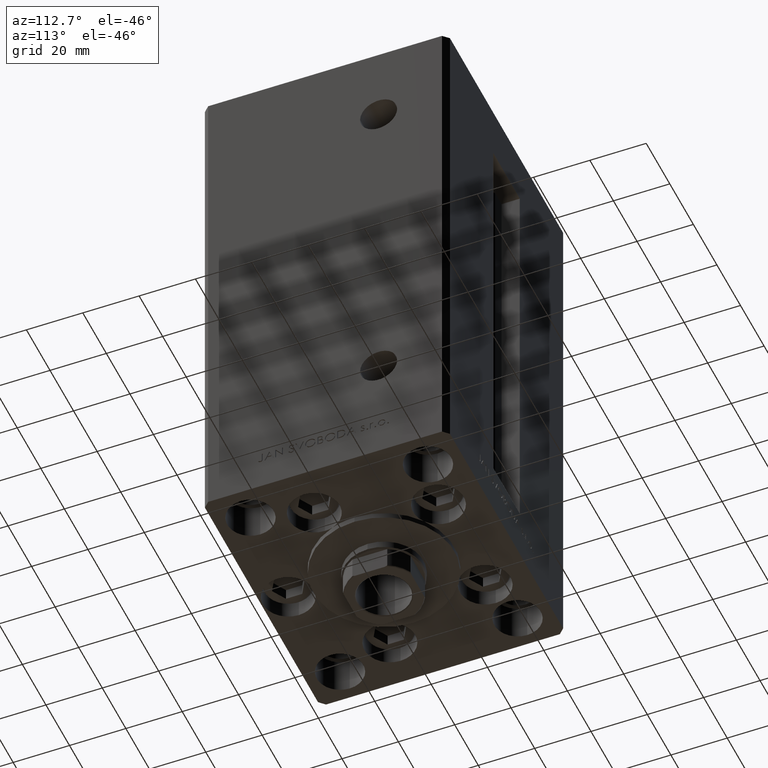
[diagram: clean part render]
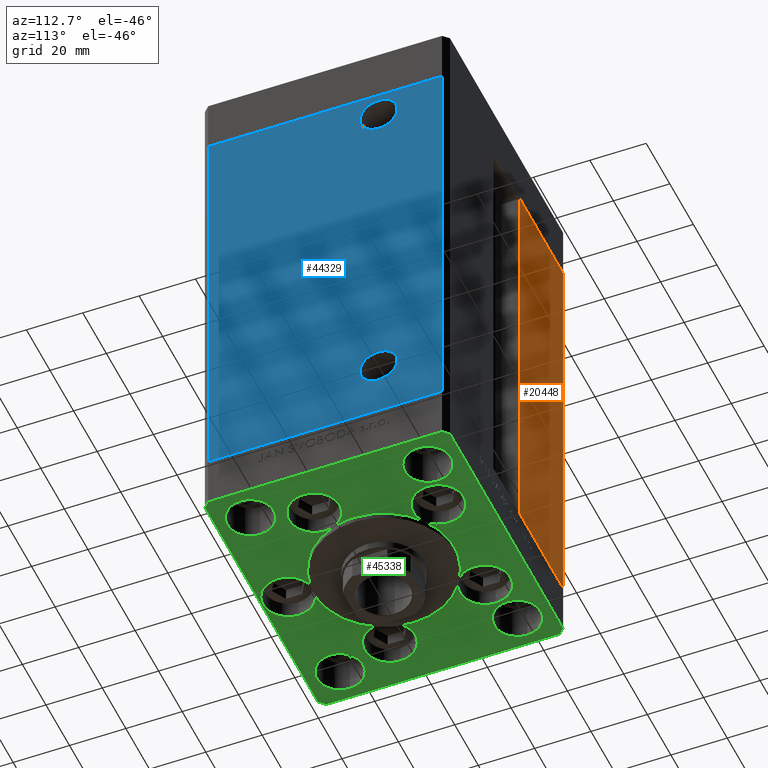
[diagram: same view with three faces highlighted in distinct colors, each labeled with its STEP entity id]
A machine part, auxiliary view with three faces highlighted in distinct colors.
Their STEP definitions:

[orange] entity #20448 — the highlighted planar face has unit normal (0, -1, 0).
#778 = EDGE_CURVE ( 'NONE', #40918, #32778, #41975, .T. ) ;
#2474 = ORIENTED_EDGE ( 'NONE', *, *, #42205, .T. ) ;
#2859 = VERTEX_POINT ( 'NONE', #32279 ) ;
#3688 = LINE ( 'NONE', #42316, #11966 ) ;
#5497 = DIRECTION ( 'NONE',  ( 0.000000000000000000, -0.000000000000000000, -1.000000000000000000 ) ) ;
#6407 = DIRECTION ( 'NONE',  ( 1.000000000000000000, 0.000000000000000000, 0.000000000000000000 ) ) ;
#7473 = ORIENTED_EDGE ( 'NONE', *, *, #19398, .T. ) ;
#7599 = CARTESIAN_POINT ( 'NONE',  ( -11.24999999999999822, 43.50000000000000000, 0.000000000000000000 ) ) ;
#8714 = VECTOR ( 'NONE', #6407, 1000.000000000000000 ) ;
#8956 = CARTESIAN_POINT ( 'NONE',  ( -11.24999999999999822, 43.50000000000000000, 0.000000000000000000 ) ) ;
#9244 = EDGE_LOOP ( 'NONE', ( #2474, #48143, #7473, #40346 ) ) ;
#11966 = VECTOR ( 'NONE', #26292, 1000.000000000000000 ) ;
#12194 = DIRECTION ( 'NONE',  ( -0.000000000000000000, -0.000000000000000000, -1.000000000000000000 ) ) ;
#15160 = VERTEX_POINT ( 'NONE', #42997 ) ;
#19398 = EDGE_CURVE ( 'NONE', #40918, #15160, #3688, .T. ) ;
#20448 = ADVANCED_FACE ( 'NONE', ( #24836 ), #39629, .F. ) ;
#21585 = VECTOR ( 'NONE', #12194, 1000.000000000000000 ) ;
#23300 = CARTESIAN_POINT ( 'NONE',  ( -11.24999999999999822, 43.50000000000000000, 148.5000000000000000 ) ) ;
#23742 = LINE ( 'NONE', #46302, #21585 ) ;
#24836 = FACE_OUTER_BOUND ( 'NONE', #9244, .T. ) ;
#26212 = LINE ( 'NONE', #37260, #8714 ) ;
#26292 = DIRECTION ( 'NONE',  ( -1.000000000000000000, 0.000000000000000000, 0.000000000000000000 ) ) ;
#29229 = VECTOR ( 'NONE', #32445, 1000.000000000000000 ) ;
#32279 = CARTESIAN_POINT ( 'NONE',  ( -48.00000000000000711, 43.50000000000000000, 148.5000000000000000 ) ) ;
#32445 = DIRECTION ( 'NONE',  ( -0.000000000000000000, -0.000000000000000000, 1.000000000000000000 ) ) ;
#32778 = VERTEX_POINT ( 'NONE', #23300 ) ;
#37260 = CARTESIAN_POINT ( 'NONE',  ( -11.24999999999999822, 43.50000000000000000, 148.5000000000000000 ) ) ;
#39378 = CARTESIAN_POINT ( 'NONE',  ( -11.24999999999999822, 43.50000000000000000, 148.5000000000000000 ) ) ;
#39629 = PLANE ( 'NONE',  #48100 ) ;
#40346 = ORIENTED_EDGE ( 'NONE', *, *, #42016, .F. ) ;
#40918 = VERTEX_POINT ( 'NONE', #8956 ) ;
#41975 = LINE ( 'NONE', #7599, #29229 ) ;
#42016 = EDGE_CURVE ( 'NONE', #2859, #15160, #23742, .T. ) ;
#42205 = EDGE_CURVE ( 'NONE', #2859, #32778, #26212, .T. ) ;
#42316 = CARTESIAN_POINT ( 'NONE',  ( -11.24999999999999822, 43.50000000000000000, 0.000000000000000000 ) ) ;
#42997 = CARTESIAN_POINT ( 'NONE',  ( -48.00000000000000711, 43.50000000000000000, 0.000000000000000000 ) ) ;
#43389 = DIRECTION ( 'NONE',  ( 0.000000000000000000, -1.000000000000000000, 0.000000000000000000 ) ) ;
#46302 = CARTESIAN_POINT ( 'NONE',  ( -48.00000000000000711, 43.50000000000000000, 148.5000000000000000 ) ) ;
#48100 = AXIS2_PLACEMENT_3D ( 'NONE', #39378, #43389, #5497 ) ;
#48143 = ORIENTED_EDGE ( 'NONE', *, *, #778, .F. ) ;

[blue] entity #44329 — the highlighted planar face has unit normal (1, -0, 0).
#491 = DIRECTION ( 'NONE',  ( 0.000000000000000000, 1.000000000000000000, 0.000000000000000000 ) ) ;
#553 = ORIENTED_EDGE ( 'NONE', *, *, #48969, .F. ) ;
#926 = CARTESIAN_POINT ( 'NONE',  ( 50.00000000000000711, 12.41999999999998394, 139.4999999999999716 ) ) ;
#2236 = EDGE_CURVE ( 'NONE', #2321, #2691, #26038, .T. ) ;
#2321 = VERTEX_POINT ( 'NONE', #41878 ) ;
#2691 = VERTEX_POINT ( 'NONE', #926 ) ;
#2795 = LINE ( 'NONE', #14575, #40147 ) ;
#3240 = CARTESIAN_POINT ( 'NONE',  ( 50.00000000000001421, 41.49999999999999289, 148.5000000000000000 ) ) ;
#3983 = CARTESIAN_POINT ( 'NONE',  ( 50.00000000000000711, 19.00000000000000000, 139.4999999999999716 ) ) ;
#4111 = EDGE_LOOP ( 'NONE', ( #47925, #27017 ) ) ;
#4259 = VERTEX_POINT ( 'NONE', #17307 ) ;
#5005 = CARTESIAN_POINT ( 'NONE',  ( 50.00000000000000711, 19.00000000000000000, 139.4999999999999716 ) ) ;
#7231 = EDGE_LOOP ( 'NONE', ( #38630, #23966 ) ) ;
#7366 = CARTESIAN_POINT ( 'NONE',  ( 50.00000000000000711, 19.00000000000000000, 20.99999999999998934 ) ) ;
#8208 = VERTEX_POINT ( 'NONE', #10020 ) ;
#8225 = DIRECTION ( 'NONE',  ( 1.000000000000000000, -3.344045254895050480E-16, 0.000000000000000000 ) ) ;
#8263 = AXIS2_PLACEMENT_3D ( 'NONE', #3983, #14805, #19298 ) ;
#10020 = CARTESIAN_POINT ( 'NONE',  ( 50.00000000000001421, 41.49999999999999289, 0.000000000000000000 ) ) ;
#10036 = FACE_BOUND ( 'NONE', #4111, .T. ) ;
#10279 = FACE_OUTER_BOUND ( 'NONE', #34486, .T. ) ;
#10290 = DIRECTION ( 'NONE',  ( -3.344045254895050973E-16, -1.000000000000000000, 0.000000000000000000 ) ) ;
#10830 = CARTESIAN_POINT ( 'NONE',  ( 49.99999999999998579, -41.49999999999999289, 0.000000000000000000 ) ) ;
#10885 = DIRECTION ( 'NONE',  ( 0.000000000000000000, 1.000000000000000000, 0.000000000000000000 ) ) ;
#12429 = EDGE_CURVE ( 'NONE', #2691, #2321, #23890, .T. ) ;
#12623 = CARTESIAN_POINT ( 'NONE',  ( 50.00000000000001421, 41.49999999999999289, 148.5000000000000000 ) ) ;
#14071 = CARTESIAN_POINT ( 'NONE',  ( 50.00000000000001421, 41.49999999999999289, 0.000000000000000000 ) ) ;
#14522 = VERTEX_POINT ( 'NONE', #10830 ) ;
#14575 = CARTESIAN_POINT ( 'NONE',  ( 50.00000000000001421, 41.49999999999999289, 148.5000000000000000 ) ) ;
#14805 = DIRECTION ( 'NONE',  ( 1.000000000000000000, -2.275047181608927644E-16, 0.000000000000000000 ) ) ;
#16291 = DIRECTION ( 'NONE',  ( 1.000000000000000000, -2.275047181608927644E-16, 0.000000000000000000 ) ) ;
#16678 = DIRECTION ( 'NONE',  ( 1.000000000000000000, -2.275047181608927644E-16, 0.000000000000000000 ) ) ;
#17307 = CARTESIAN_POINT ( 'NONE',  ( 50.00000000000000711, 25.58000000000000540, 20.99999999999998934 ) ) ;
#19298 = DIRECTION ( 'NONE',  ( 0.000000000000000000, 1.000000000000000000, 0.000000000000000000 ) ) ;
#22688 = DIRECTION ( 'NONE',  ( 1.000000000000000000, -2.275047181608927644E-16, 0.000000000000000000 ) ) ;
#23104 = EDGE_CURVE ( 'NONE', #35840, #8208, #2795, .T. ) ;
#23890 = CIRCLE ( 'NONE', #36703, 6.580000000000016058 ) ;
#23966 = ORIENTED_EDGE ( 'NONE', *, *, #12429, .F. ) ;
#25023 = LINE ( 'NONE', #48090, #32253 ) ;
#25945 = EDGE_CURVE ( 'NONE', #39631, #14522, #25023, .T. ) ;
#26038 = CIRCLE ( 'NONE', #8263, 6.580000000000016058 ) ;
#26496 = AXIS2_PLACEMENT_3D ( 'NONE', #32240, #16678, #48053 ) ;
#26540 = CIRCLE ( 'NONE', #26496, 6.580000000000006288 ) ;
#27017 = ORIENTED_EDGE ( 'NONE', *, *, #46471, .F. ) ;
#27984 = LINE ( 'NONE', #3240, #28211 ) ;
#28047 = AXIS2_PLACEMENT_3D ( 'NONE', #42357, #8225, #34332 ) ;
#28193 = VECTOR ( 'NONE', #10290, 1000.000000000000000 ) ;
#28211 = VECTOR ( 'NONE', #35250, 1000.000000000000000 ) ;
#28477 = CARTESIAN_POINT ( 'NONE',  ( 49.99999999999998579, -41.49999999999999289, 148.5000000000000000 ) ) ;
#29029 = DIRECTION ( 'NONE',  ( -0.000000000000000000, -0.000000000000000000, -1.000000000000000000 ) ) ;
#29929 = EDGE_CURVE ( 'NONE', #35840, #39631, #27984, .T. ) ;
#32240 = CARTESIAN_POINT ( 'NONE',  ( 50.00000000000000711, 19.00000000000000000, 20.99999999999998934 ) ) ;
#32253 = VECTOR ( 'NONE', #29029, 1000.000000000000000 ) ;
#33769 = ORIENTED_EDGE ( 'NONE', *, *, #25945, .T. ) ;
#34332 = DIRECTION ( 'NONE',  ( 3.344045254895050480E-16, 1.000000000000000000, 0.000000000000000000 ) ) ;
#34486 = EDGE_LOOP ( 'NONE', ( #553, #36667, #49543, #33769 ) ) ;
#35250 = DIRECTION ( 'NONE',  ( -3.344045254895050973E-16, -1.000000000000000000, 0.000000000000000000 ) ) ;
#35840 = VERTEX_POINT ( 'NONE', #12623 ) ;
#36667 = ORIENTED_EDGE ( 'NONE', *, *, #23104, .F. ) ;
#36703 = AXIS2_PLACEMENT_3D ( 'NONE', #5005, #16291, #491 ) ;
#36886 = FACE_BOUND ( 'NONE', #7231, .T. ) ;
#38630 = ORIENTED_EDGE ( 'NONE', *, *, #2236, .F. ) ;
#39631 = VERTEX_POINT ( 'NONE', #28477 ) ;
#40147 = VECTOR ( 'NONE', #45423, 1000.000000000000000 ) ;
#40583 = CARTESIAN_POINT ( 'NONE',  ( 50.00000000000000711, 12.41999999999999282, 20.99999999999998934 ) ) ;
#41393 = LINE ( 'NONE', #14071, #28193 ) ;
#41878 = CARTESIAN_POINT ( 'NONE',  ( 50.00000000000000711, 25.58000000000001606, 139.4999999999999716 ) ) ;
#42103 = PLANE ( 'NONE',  #28047 ) ;
#42357 = CARTESIAN_POINT ( 'NONE',  ( 50.00000000000001421, 41.49999999999999289, 148.5000000000000000 ) ) ;
#42492 = AXIS2_PLACEMENT_3D ( 'NONE', #7366, #22688, #10885 ) ;
#42610 = CIRCLE ( 'NONE', #42492, 6.580000000000006288 ) ;
#44329 = ADVANCED_FACE ( 'NONE', ( #10036, #36886, #10279 ), #42103, .T. ) ;
#45423 = DIRECTION ( 'NONE',  ( -0.000000000000000000, -0.000000000000000000, -1.000000000000000000 ) ) ;
#46095 = VERTEX_POINT ( 'NONE', #40583 ) ;
#46471 = EDGE_CURVE ( 'NONE', #46095, #4259, #26540, .T. ) ;
#47925 = ORIENTED_EDGE ( 'NONE', *, *, #48197, .F. ) ;
#48053 = DIRECTION ( 'NONE',  ( 0.000000000000000000, 1.000000000000000000, 0.000000000000000000 ) ) ;
#48090 = CARTESIAN_POINT ( 'NONE',  ( 49.99999999999998579, -41.49999999999999289, 148.5000000000000000 ) ) ;
#48197 = EDGE_CURVE ( 'NONE', #4259, #46095, #42610, .T. ) ;
#48969 = EDGE_CURVE ( 'NONE', #8208, #14522, #41393, .T. ) ;
#49543 = ORIENTED_EDGE ( 'NONE', *, *, #29929, .T. ) ;

[green] entity #45338 — the highlighted planar face has unit normal (0, 0, -1).
#5 = VERTEX_POINT ( 'NONE', #16125 ) ;
#183 = VERTEX_POINT ( 'NONE', #36451 ) ;
#185 = DIRECTION ( 'NONE',  ( 1.000000000000000000, 0.000000000000000000, 0.000000000000000000 ) ) ;
#264 = ORIENTED_EDGE ( 'NONE', *, *, #23842, .F. ) ;
#408 = CARTESIAN_POINT ( 'NONE',  ( -25.00000000000000000, -6.938893903907228378E-15, 0.000000000000000000 ) ) ;
#559 = ORIENTED_EDGE ( 'NONE', *, *, #34869, .F. ) ;
#645 = LINE ( 'NONE', #16444, #15870 ) ;
#975 = EDGE_CURVE ( 'NONE', #2932, #47329, #9133, .T. ) ;
#1073 = DIRECTION ( 'NONE',  ( 1.000000000000000000, 0.000000000000000000, 0.000000000000000000 ) ) ;
#1428 = AXIS2_PLACEMENT_3D ( 'NONE', #45708, #3576, #23132 ) ;
#1573 = LINE ( 'NONE', #31673, #8062 ) ;
#1645 = CARTESIAN_POINT ( 'NONE',  ( 46.25000000000000000, 31.50000000000000000, 0.000000000000000000 ) ) ;
#1846 = CARTESIAN_POINT ( 'NONE',  ( 32.05550741379015989, -11.33333333333332860, 0.000000000000000000 ) ) ;
#2028 = CARTESIAN_POINT ( 'NONE',  ( -41.05550741379015989, -11.33333333333332682, 0.000000000000000000 ) ) ;
#2307 = AXIS2_PLACEMENT_3D ( 'NONE', #34236, #3877, #4121 ) ;
#2309 = DIRECTION ( 'NONE',  ( 0.000000000000000000, 0.000000000000000000, 1.000000000000000000 ) ) ;
#2501 = DIRECTION ( 'NONE',  ( 1.000000000000000000, 0.000000000000000000, 0.000000000000000000 ) ) ;
#2507 = VERTEX_POINT ( 'NONE', #12010 ) ;
#2719 = CARTESIAN_POINT ( 'NONE',  ( -48.00000000000000000, 43.49999999999997158, 0.000000000000000000 ) ) ;
#2755 = VERTEX_POINT ( 'NONE', #19242 ) ;
#2821 = DIRECTION ( 'NONE',  ( 1.000000000000000000, 0.000000000000000000, 0.000000000000000000 ) ) ;
#2848 = CARTESIAN_POINT ( 'NONE',  ( -50.00000000000000711, 41.49999999999999289, 0.000000000000000000 ) ) ;
#2932 = VERTEX_POINT ( 'NONE', #14869 ) ;
#3022 = AXIS2_PLACEMENT_3D ( 'NONE', #13154, #9360, #26776 ) ;
#3212 = DIRECTION ( 'NONE',  ( 0.000000000000000000, 0.000000000000000000, 1.000000000000000000 ) ) ;
#3576 = DIRECTION ( 'NONE',  ( 0.000000000000000000, 0.000000000000000000, 1.000000000000000000 ) ) ;
#3626 = CARTESIAN_POINT ( 'NONE',  ( 0.000000000000000000, -6.938893903907228378E-15, 0.000000000000000000 ) ) ;
#3861 = LINE ( 'NONE', #10664, #22274 ) ;
#3877 = DIRECTION ( 'NONE',  ( 0.000000000000000000, 0.000000000000000000, 1.000000000000000000 ) ) ;
#3887 = CARTESIAN_POINT ( 'NONE',  ( 19.82068048781374969, 27.62499999999998934, 0.000000000000000000 ) ) ;
#3938 = DIRECTION ( 'NONE',  ( 0.000000000000000000, 0.000000000000000000, 1.000000000000000000 ) ) ;
#3986 = ORIENTED_EDGE ( 'NONE', *, *, #25043, .F. ) ;
#4039 = DIRECTION ( 'NONE',  ( -0.000000000000000000, 0.000000000000000000, 1.000000000000000000 ) ) ;
#4121 = DIRECTION ( 'NONE',  ( 1.000000000000000000, 0.000000000000000000, 0.000000000000000000 ) ) ;
#4704 = ORIENTED_EDGE ( 'NONE', *, *, #975, .F. ) ;
#4750 = AXIS2_PLACEMENT_3D ( 'NONE', #39173, #32011, #36282 ) ;
#4974 = DIRECTION ( 'NONE',  ( 0.000000000000000000, 0.000000000000000000, 1.000000000000000000 ) ) ;
#5050 = DIRECTION ( 'NONE',  ( 1.000000000000000000, 0.000000000000000000, 0.000000000000000000 ) ) ;
#5162 = CIRCLE ( 'NONE', #38791, 8.250000000000000000 ) ;
#5467 = LINE ( 'NONE', #31315, #48663 ) ;
#5644 = CARTESIAN_POINT ( 'NONE',  ( 23.05550741379015633, -11.33333333333332682, 0.000000000000000000 ) ) ;
#5723 = CARTESIAN_POINT ( 'NONE',  ( -10.82068048781375147, 27.62499999999998934, 0.000000000000000000 ) ) ;
#6217 = CARTESIAN_POINT ( 'NONE',  ( 0.000000000000000000, -34.00000000000000000, 0.000000000000000000 ) ) ;
#6287 = DIRECTION ( 'NONE',  ( 1.000000000000000000, 0.000000000000000000, 0.000000000000000000 ) ) ;
#6348 = CIRCLE ( 'NONE', #7114, 9.000000000000000000 ) ;
#6460 = DIRECTION ( 'NONE',  ( 1.000000000000000000, 0.000000000000000000, 0.000000000000000000 ) ) ;
#6611 = DIRECTION ( 'NONE',  ( 8.360113137237620037E-17, -1.000000000000000000, 0.000000000000000000 ) ) ;
#6682 = CIRCLE ( 'NONE', #45118, 8.249999999999992895 ) ;
#6740 = CARTESIAN_POINT ( 'NONE',  ( -46.25000000000000000, 31.50000000000000000, 0.000000000000000000 ) ) ;
#7084 = CIRCLE ( 'NONE', #35122, 8.249999999999992895 ) ;
#7114 = AXIS2_PLACEMENT_3D ( 'NONE', #6217, #22506, #6460 ) ;
#7149 = CARTESIAN_POINT ( 'NONE',  ( 48.00000000000000711, -43.49999999999992184, 0.000000000000000000 ) ) ;
#7214 = CARTESIAN_POINT ( 'NONE',  ( -46.25000000000000711, -31.50000000000000711, 0.000000000000000000 ) ) ;
#7337 = AXIS2_PLACEMENT_3D ( 'NONE', #1846, #28687, #26631 ) ;
#7402 = VERTEX_POINT ( 'NONE', #7149 ) ;
#7799 = CIRCLE ( 'NONE', #40727, 25.00000000000000000 ) ;
#7919 = DIRECTION ( 'NONE',  ( 1.000000000000000000, 0.000000000000000000, 0.000000000000000000 ) ) ;
#8062 = VECTOR ( 'NONE', #35684, 1000.000000000000000 ) ;
#8132 = CIRCLE ( 'NONE', #10559, 8.999999999999998224 ) ;
#8754 = ORIENTED_EDGE ( 'NONE', *, *, #11235, .T. ) ;
#9008 = ORIENTED_EDGE ( 'NONE', *, *, #38371, .F. ) ;
#9133 = CIRCLE ( 'NONE', #45226, 8.250000000000000000 ) ;
#9191 = ORIENTED_EDGE ( 'NONE', *, *, #18815, .F. ) ;
#9209 = DIRECTION ( 'NONE',  ( 0.000000000000000000, 0.000000000000000000, 1.000000000000000000 ) ) ;
#9252 = ORIENTED_EDGE ( 'NONE', *, *, #33159, .F. ) ;
#9360 = DIRECTION ( 'NONE',  ( 0.000000000000000000, 0.000000000000000000, 1.000000000000000000 ) ) ;
#9570 = EDGE_LOOP ( 'NONE', ( #46228, #4704 ) ) ;
#9591 = CARTESIAN_POINT ( 'NONE',  ( -19.82068048781374969, 27.62499999999998934, 0.000000000000000000 ) ) ;
#9744 = ORIENTED_EDGE ( 'NONE', *, *, #32677, .F. ) ;
#9779 = CARTESIAN_POINT ( 'NONE',  ( -50.00000000000000000, -41.50000000000004263, 0.000000000000000000 ) ) ;
#9827 = ORIENTED_EDGE ( 'NONE', *, *, #34973, .F. ) ;
#10292 = EDGE_CURVE ( 'NONE', #2755, #34714, #16561, .T. ) ;
#10463 = CARTESIAN_POINT ( 'NONE',  ( -50.00000000000000711, 41.49999999999999289, 0.000000000000000000 ) ) ;
#10559 = AXIS2_PLACEMENT_3D ( 'NONE', #13644, #48261, #13141 ) ;
#10598 = LINE ( 'NONE', #21911, #17450 ) ;
#10664 = CARTESIAN_POINT ( 'NONE',  ( 47.99999999999999289, 43.50000000000000000, 0.000000000000000000 ) ) ;
#10775 = DIRECTION ( 'NONE',  ( 0.000000000000000000, 0.000000000000000000, 1.000000000000000000 ) ) ;
#10977 = EDGE_CURVE ( 'NONE', #27726, #28030, #19031, .T. ) ;
#11017 = AXIS2_PLACEMENT_3D ( 'NONE', #23515, #3938, #185 ) ;
#11235 = EDGE_CURVE ( 'NONE', #7402, #30686, #10598, .T. ) ;
#11262 = DIRECTION ( 'NONE',  ( 1.000000000000000000, 0.000000000000000000, 0.000000000000000000 ) ) ;
#11380 = DIRECTION ( 'NONE',  ( 0.000000000000000000, 0.000000000000000000, 1.000000000000000000 ) ) ;
#11694 = DIRECTION ( 'NONE',  ( 0.000000000000000000, 0.000000000000000000, 1.000000000000000000 ) ) ;
#11848 = CIRCLE ( 'NONE', #40724, 8.250000000000000000 ) ;
#11999 = EDGE_CURVE ( 'NONE', #26560, #2755, #39897, .T. ) ;
#12010 = CARTESIAN_POINT ( 'NONE',  ( 46.25000000000000000, -31.50000000000000711, 0.000000000000000000 ) ) ;
#12096 = ORIENTED_EDGE ( 'NONE', *, *, #21382, .F. ) ;
#12155 = EDGE_CURVE ( 'NONE', #24353, #14937, #7799, .T. ) ;
#12655 = EDGE_CURVE ( 'NONE', #21065, #38950, #18300, .T. ) ;
#12750 = DIRECTION ( 'NONE',  ( -0.7071067811865536790, -0.7071067811865414665, 0.000000000000000000 ) ) ;
#12829 = CARTESIAN_POINT ( 'NONE',  ( 0.000000000000000000, 0.000000000000000000, 0.000000000000000000 ) ) ;
#12992 = EDGE_CURVE ( 'NONE', #20239, #36989, #645, .T. ) ;
#13141 = DIRECTION ( 'NONE',  ( 1.000000000000000000, 0.000000000000000000, 0.000000000000000000 ) ) ;
#13154 = CARTESIAN_POINT ( 'NONE',  ( 32.05550741379015989, -11.33333333333332860, 0.000000000000000000 ) ) ;
#13257 = DIRECTION ( 'NONE',  ( 1.000000000000000000, 0.000000000000000000, 0.000000000000000000 ) ) ;
#13641 = EDGE_CURVE ( 'NONE', #33164, #13712, #5467, .T. ) ;
#13644 = CARTESIAN_POINT ( 'NONE',  ( 19.82068048781374969, 27.62499999999998934, 0.000000000000000000 ) ) ;
#13712 = VERTEX_POINT ( 'NONE', #10463 ) ;
#13725 = VERTEX_POINT ( 'NONE', #408 ) ;
#13794 = ORIENTED_EDGE ( 'NONE', *, *, #12992, .T. ) ;
#13814 = DIRECTION ( 'NONE',  ( 0.000000000000000000, 0.000000000000000000, 1.000000000000000000 ) ) ;
#13853 = CARTESIAN_POINT ( 'NONE',  ( 0.000000000000000000, -25.00000000000000000, 0.000000000000000000 ) ) ;
#14252 = CARTESIAN_POINT ( 'NONE',  ( -19.82068048781374969, 27.62499999999998934, 0.000000000000000000 ) ) ;
#14358 = DIRECTION ( 'NONE',  ( 0.000000000000000000, 0.000000000000000000, 1.000000000000000000 ) ) ;
#14409 = VERTEX_POINT ( 'NONE', #18127 ) ;
#14545 = CIRCLE ( 'NONE', #41783, 8.250000000000000000 ) ;
#14619 = CARTESIAN_POINT ( 'NONE',  ( 47.99999999999999289, 43.50000000000000000, 0.000000000000000000 ) ) ;
#14767 = ORIENTED_EDGE ( 'NONE', *, *, #12155, .F. ) ;
#14869 = CARTESIAN_POINT ( 'NONE',  ( 29.74999999999999645, 31.50000000000000000, 0.000000000000000000 ) ) ;
#14937 = VERTEX_POINT ( 'NONE', #21242 ) ;
#15040 = EDGE_CURVE ( 'NONE', #36989, #33164, #3861, .T. ) ;
#15175 = DIRECTION ( 'NONE',  ( 1.000000000000000000, 0.000000000000000000, 0.000000000000000000 ) ) ;
#15307 = VERTEX_POINT ( 'NONE', #32954 ) ;
#15735 = EDGE_CURVE ( 'NONE', #48774, #23505, #11848, .T. ) ;
#15870 = VECTOR ( 'NONE', #15937, 999.9999999999998863 ) ;
#15933 = CARTESIAN_POINT ( 'NONE',  ( -50.00000000000000000, -41.50000000000004263, 0.000000000000000000 ) ) ;
#15937 = DIRECTION ( 'NONE',  ( -0.7071067811865512365, 0.7071067811865439090, 0.000000000000000000 ) ) ;
#16125 = CARTESIAN_POINT ( 'NONE',  ( -29.75000000000000711, -31.50000000000000711, 0.000000000000000000 ) ) ;
#16444 = CARTESIAN_POINT ( 'NONE',  ( 50.00000000000000000, 41.50000000000000711, 0.000000000000000000 ) ) ;
#16561 = CIRCLE ( 'NONE', #44633, 9.000000000000001776 ) ;
#16651 = CIRCLE ( 'NONE', #3022, 9.000000000000001776 ) ;
#16927 = CIRCLE ( 'NONE', #25782, 8.999999999999998224 ) ;
#16973 = EDGE_CURVE ( 'NONE', #34732, #14409, #22494, .T. ) ;
#17003 = CARTESIAN_POINT ( 'NONE',  ( -23.05550741379015633, -11.33333333333332860, 0.000000000000000000 ) ) ;
#17373 = VERTEX_POINT ( 'NONE', #20900 ) ;
#17390 = CIRCLE ( 'NONE', #39834, 25.00000000000000000 ) ;
#17400 = DIRECTION ( 'NONE',  ( 0.000000000000000000, 0.000000000000000000, 1.000000000000000000 ) ) ;
#17450 = VECTOR ( 'NONE', #47763, 1000.000000000000114 ) ;
#18127 = CARTESIAN_POINT ( 'NONE',  ( -48.00000000000000711, -43.50000000000002842, 0.000000000000000000 ) ) ;
#18300 = CIRCLE ( 'NONE', #2307, 25.00000000000000000 ) ;
#18483 = AXIS2_PLACEMENT_3D ( 'NONE', #12829, #4039, #5050 ) ;
#18658 = EDGE_CURVE ( 'NONE', #47645, #21065, #26374, .T. ) ;
#18815 = EDGE_CURVE ( 'NONE', #14937, #22902, #48836, .T. ) ;
#19031 = CIRCLE ( 'NONE', #29440, 9.000000000000001776 ) ;
#19104 = CARTESIAN_POINT ( 'NONE',  ( -29.75000000000000000, 31.50000000000000000, 0.000000000000000000 ) ) ;
#19242 = CARTESIAN_POINT ( 'NONE',  ( -23.57022603955158502, -8.333333333333332149, 0.000000000000000000 ) ) ;
#19277 = CARTESIAN_POINT ( 'NONE',  ( 50.00000000000000000, -41.49999999999992895, 0.000000000000000000 ) ) ;
#19338 = CIRCLE ( 'NONE', #47399, 9.000000000000000000 ) ;
#20007 = EDGE_CURVE ( 'NONE', #13712, #34732, #45711, .T. ) ;
#20008 = AXIS2_PLACEMENT_3D ( 'NONE', #3626, #30463, #47009 ) ;
#20239 = VERTEX_POINT ( 'NONE', #40930 ) ;
#20344 = DIRECTION ( 'NONE',  ( 1.000000000000000000, 0.000000000000000000, 0.000000000000000000 ) ) ;
#20900 = CARTESIAN_POINT ( 'NONE',  ( 29.75000000000001066, -31.50000000000000711, 0.000000000000000000 ) ) ;
#20906 = CARTESIAN_POINT ( 'NONE',  ( 0.000000000000000000, -6.938893903907228378E-15, 0.000000000000000000 ) ) ;
#21065 = VERTEX_POINT ( 'NONE', #13853 ) ;
#21200 = EDGE_LOOP ( 'NONE', ( #9008, #43000 ) ) ;
#21242 = CARTESIAN_POINT ( 'NONE',  ( 14.57402977045128623, 20.31249999999998579, 0.000000000000000000 ) ) ;
#21382 = EDGE_CURVE ( 'NONE', #2755, #21065, #36916, .T. ) ;
#21480 = CIRCLE ( 'NONE', #11017, 8.250000000000000000 ) ;
#21911 = CARTESIAN_POINT ( 'NONE',  ( 48.00000000000000711, -43.49999999999992184, 0.000000000000000000 ) ) ;
#22274 = VECTOR ( 'NONE', #41990, 1000.000000000000000 ) ;
#22280 = CARTESIAN_POINT ( 'NONE',  ( -38.00000000000000711, -31.50000000000000711, 0.000000000000000000 ) ) ;
#22356 = ORIENTED_EDGE ( 'NONE', *, *, #10977, .F. ) ;
#22478 = AXIS2_PLACEMENT_3D ( 'NONE', #25586, #33586, #2501 ) ;
#22494 = LINE ( 'NONE', #15933, #46346 ) ;
#22506 = DIRECTION ( 'NONE',  ( 0.000000000000000000, 0.000000000000000000, 1.000000000000000000 ) ) ;
#22799 = DIRECTION ( 'NONE',  ( 0.000000000000000000, 0.000000000000000000, 1.000000000000000000 ) ) ;
#22902 = VERTEX_POINT ( 'NONE', #25273 ) ;
#23132 = DIRECTION ( 'NONE',  ( 1.000000000000000000, 0.000000000000000000, 0.000000000000000000 ) ) ;
#23338 = VERTEX_POINT ( 'NONE', #47654 ) ;
#23419 = CARTESIAN_POINT ( 'NONE',  ( 41.05550741379015989, -11.33333333333332860, 0.000000000000000000 ) ) ;
#23505 = VERTEX_POINT ( 'NONE', #6740 ) ;
#23515 = CARTESIAN_POINT ( 'NONE',  ( -38.00000000000000711, -31.50000000000000711, 0.000000000000000000 ) ) ;
#23842 = EDGE_CURVE ( 'NONE', #29393, #14937, #16927, .T. ) ;
#24171 = CARTESIAN_POINT ( 'NONE',  ( 9.000000000000000000, -34.00000000000000000, 0.000000000000000000 ) ) ;
#24190 = DIRECTION ( 'NONE',  ( 1.000000000000000000, 0.000000000000000000, 0.000000000000000000 ) ) ;
#24303 = AXIS2_PLACEMENT_3D ( 'NONE', #47115, #4974, #13257 ) ;
#24353 = VERTEX_POINT ( 'NONE', #25911 ) ;
#24545 = CARTESIAN_POINT ( 'NONE',  ( 0.000000000000000000, -34.00000000000000000, 0.000000000000000000 ) ) ;
#24570 = DIRECTION ( 'NONE',  ( 1.000000000000000000, 0.000000000000000000, 0.000000000000000000 ) ) ;
#24886 = EDGE_LOOP ( 'NONE', ( #9191, #264, #37465, #9827, #14767, #46151, #33269, #22356, #44890, #43154, #28416, #45363, #36127, #12096, #44947, #559, #41467, #46339, #28670, #9252, #3986, #25474 ) ) ;
#25043 = EDGE_CURVE ( 'NONE', #44390, #183, #45807, .T. ) ;
#25179 = AXIS2_PLACEMENT_3D ( 'NONE', #41374, #13814, #29848 ) ;
#25273 = CARTESIAN_POINT ( 'NONE',  ( -14.57402977045128978, 20.31249999999999289, 0.000000000000000000 ) ) ;
#25474 = ORIENTED_EDGE ( 'NONE', *, *, #28915, .F. ) ;
#25556 = DIRECTION ( 'NONE',  ( 1.000000000000000000, 0.000000000000000000, 0.000000000000000000 ) ) ;
#25586 = CARTESIAN_POINT ( 'NONE',  ( 0.000000000000000000, -6.938893903907228378E-15, 0.000000000000000000 ) ) ;
#25782 = AXIS2_PLACEMENT_3D ( 'NONE', #3887, #31226, #15175 ) ;
#25911 = CARTESIAN_POINT ( 'NONE',  ( 25.00000000000000000, -3.877276906038844941E-15, 0.000000000000000000 ) ) ;
#26029 = CARTESIAN_POINT ( 'NONE',  ( 38.00000000000000000, 31.50000000000000000, 0.000000000000000000 ) ) ;
#26103 = ORIENTED_EDGE ( 'NONE', *, *, #47884, .F. ) ;
#26374 = CIRCLE ( 'NONE', #4750, 9.000000000000000000 ) ;
#26446 = VECTOR ( 'NONE', #6611, 1000.000000000000000 ) ;
#26480 = VERTEX_POINT ( 'NONE', #7214 ) ;
#26524 = CARTESIAN_POINT ( 'NONE',  ( -19.82068048781374969, 27.62499999999998934, 0.000000000000000000 ) ) ;
#26560 = VERTEX_POINT ( 'NONE', #17003 ) ;
#26607 = EDGE_LOOP ( 'NONE', ( #45772, #9744 ) ) ;
#26631 = DIRECTION ( 'NONE',  ( 1.000000000000000000, 0.000000000000000000, 0.000000000000000000 ) ) ;
#26678 = CIRCLE ( 'NONE', #24303, 25.00000000000000000 ) ;
#26776 = DIRECTION ( 'NONE',  ( 1.000000000000000000, 0.000000000000000000, 0.000000000000000000 ) ) ;
#26792 = CIRCLE ( 'NONE', #32399, 8.999999999999998224 ) ;
#27051 = DIRECTION ( 'NONE',  ( 0.000000000000000000, 1.000000000000000000, 0.000000000000000000 ) ) ;
#27564 = LINE ( 'NONE', #34822, #29592 ) ;
#27726 = VERTEX_POINT ( 'NONE', #5644 ) ;
#28030 = VERTEX_POINT ( 'NONE', #23419 ) ;
#28416 = ORIENTED_EDGE ( 'NONE', *, *, #18658, .F. ) ;
#28670 = ORIENTED_EDGE ( 'NONE', *, *, #35988, .F. ) ;
#28685 = DIRECTION ( 'NONE',  ( 1.000000000000000000, 0.000000000000000000, 0.000000000000000000 ) ) ;
#28687 = DIRECTION ( 'NONE',  ( 0.000000000000000000, 0.000000000000000000, 1.000000000000000000 ) ) ;
#28915 = EDGE_CURVE ( 'NONE', #22902, #44390, #19338, .T. ) ;
#29011 = EDGE_CURVE ( 'NONE', #28030, #38950, #29016, .T. ) ;
#29016 = CIRCLE ( 'NONE', #7337, 9.000000000000001776 ) ;
#29367 = CARTESIAN_POINT ( 'NONE',  ( 38.00000000000000711, -31.50000000000000711, 0.000000000000000000 ) ) ;
#29393 = VERTEX_POINT ( 'NONE', #35677 ) ;
#29440 = AXIS2_PLACEMENT_3D ( 'NONE', #46761, #36216, #24190 ) ;
#29592 = VECTOR ( 'NONE', #27051, 1000.000000000000000 ) ;
#29848 = DIRECTION ( 'NONE',  ( 1.000000000000000000, 0.000000000000000000, 0.000000000000000000 ) ) ;
#29945 = EDGE_LOOP ( 'NONE', ( #37728, #47774, #8754, #34800, #13794, #37160, #30913, #45438 ) ) ;
#30278 = DIRECTION ( 'NONE',  ( 0.000000000000000000, 0.000000000000000000, 1.000000000000000000 ) ) ;
#30463 = DIRECTION ( 'NONE',  ( 0.000000000000000000, 0.000000000000000000, 1.000000000000000000 ) ) ;
#30661 = AXIS2_PLACEMENT_3D ( 'NONE', #24545, #9209, #47616 ) ;
#30686 = VERTEX_POINT ( 'NONE', #19277 ) ;
#30730 = EDGE_CURVE ( 'NONE', #21065, #23338, #49080, .T. ) ;
#30887 = PLANE ( 'NONE',  #18483 ) ;
#30913 = ORIENTED_EDGE ( 'NONE', *, *, #13641, .T. ) ;
#30966 = AXIS2_PLACEMENT_3D ( 'NONE', #20906, #14358, #28685 ) ;
#31140 = FACE_BOUND ( 'NONE', #9570, .T. ) ;
#31226 = DIRECTION ( 'NONE',  ( 0.000000000000000000, 0.000000000000000000, 1.000000000000000000 ) ) ;
#31243 = DIRECTION ( 'NONE',  ( 0.7071067811865487940, -0.7071067811865463515, 0.000000000000000000 ) ) ;
#31315 = CARTESIAN_POINT ( 'NONE',  ( -48.00000000000000000, 43.49999999999997158, 0.000000000000000000 ) ) ;
#31673 = CARTESIAN_POINT ( 'NONE',  ( -48.00000000000000711, -43.50000000000002842, 0.000000000000000000 ) ) ;
#31888 = FACE_OUTER_BOUND ( 'NONE', #29945, .T. ) ;
#32011 = DIRECTION ( 'NONE',  ( 0.000000000000000000, 0.000000000000000000, 1.000000000000000000 ) ) ;
#32116 = EDGE_CURVE ( 'NONE', #38950, #24353, #26678, .T. ) ;
#32399 = AXIS2_PLACEMENT_3D ( 'NONE', #38589, #22799, #42347 ) ;
#32677 = EDGE_CURVE ( 'NONE', #17373, #2507, #6682, .T. ) ;
#32817 = DIRECTION ( 'NONE',  ( 0.000000000000000000, 0.000000000000000000, 1.000000000000000000 ) ) ;
#32841 = CARTESIAN_POINT ( 'NONE',  ( -38.00000000000000000, 31.50000000000000000, 0.000000000000000000 ) ) ;
#32905 = CARTESIAN_POINT ( 'NONE',  ( 0.000000000000000000, -6.938893903907228378E-15, 0.000000000000000000 ) ) ;
#32917 = AXIS2_PLACEMENT_3D ( 'NONE', #22280, #3212, #38300 ) ;
#32954 = CARTESIAN_POINT ( 'NONE',  ( 28.82068048781374969, 27.62499999999998934, 0.000000000000000000 ) ) ;
#33159 = EDGE_CURVE ( 'NONE', #183, #22902, #37155, .T. ) ;
#33164 = VERTEX_POINT ( 'NONE', #2719 ) ;
#33269 = ORIENTED_EDGE ( 'NONE', *, *, #29011, .F. ) ;
#33586 = DIRECTION ( 'NONE',  ( 0.000000000000000000, 0.000000000000000000, 1.000000000000000000 ) ) ;
#33631 = DIRECTION ( 'NONE',  ( 1.000000000000000000, 0.000000000000000000, 0.000000000000000000 ) ) ;
#34236 = CARTESIAN_POINT ( 'NONE',  ( 0.000000000000000000, -6.938893903907228378E-15, 0.000000000000000000 ) ) ;
#34714 = VERTEX_POINT ( 'NONE', #2028 ) ;
#34732 = VERTEX_POINT ( 'NONE', #9779 ) ;
#34800 = ORIENTED_EDGE ( 'NONE', *, *, #41591, .T. ) ;
#34822 = CARTESIAN_POINT ( 'NONE',  ( 50.00000000000000000, -41.49999999999992895, 0.000000000000000000 ) ) ;
#34869 = EDGE_CURVE ( 'NONE', #34714, #26560, #46782, .T. ) ;
#34895 = FACE_BOUND ( 'NONE', #26607, .T. ) ;
#34973 = EDGE_CURVE ( 'NONE', #14937, #15307, #26792, .T. ) ;
#35122 = AXIS2_PLACEMENT_3D ( 'NONE', #38953, #43216, #1073 ) ;
#35366 = EDGE_CURVE ( 'NONE', #47329, #2932, #5162, .T. ) ;
#35405 = FACE_BOUND ( 'NONE', #39137, .T. ) ;
#35677 = CARTESIAN_POINT ( 'NONE',  ( 10.82068048781375147, 27.62499999999998934, 0.000000000000000000 ) ) ;
#35684 = DIRECTION ( 'NONE',  ( 1.000000000000000000, 1.156482317317871331E-15, 0.000000000000000000 ) ) ;
#35988 = EDGE_CURVE ( 'NONE', #22902, #13725, #48648, .T. ) ;
#36127 = ORIENTED_EDGE ( 'NONE', *, *, #30730, .F. ) ;
#36133 = CIRCLE ( 'NONE', #32917, 8.250000000000000000 ) ;
#36216 = DIRECTION ( 'NONE',  ( 0.000000000000000000, 0.000000000000000000, 1.000000000000000000 ) ) ;
#36282 = DIRECTION ( 'NONE',  ( 1.000000000000000000, 0.000000000000000000, 0.000000000000000000 ) ) ;
#36451 = CARTESIAN_POINT ( 'NONE',  ( -28.82068048781374969, 27.62499999999998934, 0.000000000000000000 ) ) ;
#36609 = EDGE_CURVE ( 'NONE', #13725, #2755, #17390, .T. ) ;
#36641 = CARTESIAN_POINT ( 'NONE',  ( -38.00000000000000000, 31.50000000000000000, 0.000000000000000000 ) ) ;
#36916 = CIRCLE ( 'NONE', #22478, 25.00000000000000000 ) ;
#36989 = VERTEX_POINT ( 'NONE', #14619 ) ;
#37073 = DIRECTION ( 'NONE',  ( 1.000000000000000000, 0.000000000000000000, 0.000000000000000000 ) ) ;
#37155 = CIRCLE ( 'NONE', #38716, 9.000000000000000000 ) ;
#37160 = ORIENTED_EDGE ( 'NONE', *, *, #15040, .T. ) ;
#37184 = CARTESIAN_POINT ( 'NONE',  ( 38.00000000000000000, 31.50000000000000000, 0.000000000000000000 ) ) ;
#37427 = DIRECTION ( 'NONE',  ( 0.000000000000000000, 0.000000000000000000, 1.000000000000000000 ) ) ;
#37465 = ORIENTED_EDGE ( 'NONE', *, *, #48474, .F. ) ;
#37657 = ORIENTED_EDGE ( 'NONE', *, *, #15735, .F. ) ;
#37728 = ORIENTED_EDGE ( 'NONE', *, *, #16973, .T. ) ;
#38277 = EDGE_CURVE ( 'NONE', #38950, #27726, #16651, .T. ) ;
#38300 = DIRECTION ( 'NONE',  ( 1.000000000000000000, 0.000000000000000000, 0.000000000000000000 ) ) ;
#38369 = CARTESIAN_POINT ( 'NONE',  ( 23.57022603955158502, -8.333333333333332149, 0.000000000000000000 ) ) ;
#38371 = EDGE_CURVE ( 'NONE', #5, #26480, #21480, .T. ) ;
#38589 = CARTESIAN_POINT ( 'NONE',  ( 19.82068048781374969, 27.62499999999998934, 0.000000000000000000 ) ) ;
#38716 = AXIS2_PLACEMENT_3D ( 'NONE', #14252, #30278, #25556 ) ;
#38791 = AXIS2_PLACEMENT_3D ( 'NONE', #26029, #32817, #37073 ) ;
#38950 = VERTEX_POINT ( 'NONE', #38369 ) ;
#38953 = CARTESIAN_POINT ( 'NONE',  ( 38.00000000000000711, -31.50000000000000711, 0.000000000000000000 ) ) ;
#39137 = EDGE_LOOP ( 'NONE', ( #37657, #26103 ) ) ;
#39173 = CARTESIAN_POINT ( 'NONE',  ( 0.000000000000000000, -34.00000000000000000, 0.000000000000000000 ) ) ;
#39178 = FACE_BOUND ( 'NONE', #21200, .T. ) ;
#39619 = DIRECTION ( 'NONE',  ( 0.000000000000000000, 0.000000000000000000, 1.000000000000000000 ) ) ;
#39834 = AXIS2_PLACEMENT_3D ( 'NONE', #42237, #11380, #41750 ) ;
#39897 = CIRCLE ( 'NONE', #1428, 9.000000000000001776 ) ;
#40219 = AXIS2_PLACEMENT_3D ( 'NONE', #26524, #11694, #7919 ) ;
#40276 = EDGE_CURVE ( 'NONE', #2507, #17373, #7084, .T. ) ;
#40724 = AXIS2_PLACEMENT_3D ( 'NONE', #32841, #39619, #24570 ) ;
#40725 = DIRECTION ( 'NONE',  ( 1.000000000000000000, 0.000000000000000000, 0.000000000000000000 ) ) ;
#40727 = AXIS2_PLACEMENT_3D ( 'NONE', #32905, #2309, #33631 ) ;
#40910 = CARTESIAN_POINT ( 'NONE',  ( -32.05550741379015989, -11.33333333333332860, 0.000000000000000000 ) ) ;
#40930 = CARTESIAN_POINT ( 'NONE',  ( 50.00000000000000000, 41.50000000000000711, 0.000000000000000000 ) ) ;
#41374 = CARTESIAN_POINT ( 'NONE',  ( -32.05550741379015989, -11.33333333333332860, 0.000000000000000000 ) ) ;
#41467 = ORIENTED_EDGE ( 'NONE', *, *, #10292, .F. ) ;
#41591 = EDGE_CURVE ( 'NONE', #30686, #20239, #27564, .T. ) ;
#41750 = DIRECTION ( 'NONE',  ( 1.000000000000000000, 0.000000000000000000, 0.000000000000000000 ) ) ;
#41783 = AXIS2_PLACEMENT_3D ( 'NONE', #36641, #43677, #20344 ) ;
#41822 = EDGE_CURVE ( 'NONE', #23338, #47645, #6348, .T. ) ;
#41990 = DIRECTION ( 'NONE',  ( -1.000000000000000000, -2.891205793294678326E-16, 0.000000000000000000 ) ) ;
#42237 = CARTESIAN_POINT ( 'NONE',  ( 0.000000000000000000, -6.938893903907228378E-15, 0.000000000000000000 ) ) ;
#42347 = DIRECTION ( 'NONE',  ( 1.000000000000000000, 0.000000000000000000, 0.000000000000000000 ) ) ;
#43000 = ORIENTED_EDGE ( 'NONE', *, *, #49452, .F. ) ;
#43154 = ORIENTED_EDGE ( 'NONE', *, *, #12655, .F. ) ;
#43216 = DIRECTION ( 'NONE',  ( 0.000000000000000000, 0.000000000000000000, 1.000000000000000000 ) ) ;
#43677 = DIRECTION ( 'NONE',  ( 0.000000000000000000, 0.000000000000000000, 1.000000000000000000 ) ) ;
#44390 = VERTEX_POINT ( 'NONE', #5723 ) ;
#44633 = AXIS2_PLACEMENT_3D ( 'NONE', #40910, #48438, #6287 ) ;
#44890 = ORIENTED_EDGE ( 'NONE', *, *, #38277, .F. ) ;
#44947 = ORIENTED_EDGE ( 'NONE', *, *, #11999, .F. ) ;
#45118 = AXIS2_PLACEMENT_3D ( 'NONE', #29367, #10775, #11262 ) ;
#45226 = AXIS2_PLACEMENT_3D ( 'NONE', #37184, #37427, #2821 ) ;
#45338 = ADVANCED_FACE ( 'NONE', ( #47194, #31140, #35405, #39178, #34895, #31888 ), #30887, .T. ) ;
#45363 = ORIENTED_EDGE ( 'NONE', *, *, #41822, .F. ) ;
#45438 = ORIENTED_EDGE ( 'NONE', *, *, #20007, .T. ) ;
#45708 = CARTESIAN_POINT ( 'NONE',  ( -32.05550741379015989, -11.33333333333332860, 0.000000000000000000 ) ) ;
#45711 = LINE ( 'NONE', #2848, #26446 ) ;
#45772 = ORIENTED_EDGE ( 'NONE', *, *, #40276, .F. ) ;
#45807 = CIRCLE ( 'NONE', #40219, 9.000000000000000000 ) ;
#46151 = ORIENTED_EDGE ( 'NONE', *, *, #32116, .F. ) ;
#46228 = ORIENTED_EDGE ( 'NONE', *, *, #35366, .F. ) ;
#46339 = ORIENTED_EDGE ( 'NONE', *, *, #36609, .F. ) ;
#46346 = VECTOR ( 'NONE', #31243, 1000.000000000000000 ) ;
#46761 = CARTESIAN_POINT ( 'NONE',  ( 32.05550741379015989, -11.33333333333332860, 0.000000000000000000 ) ) ;
#46782 = CIRCLE ( 'NONE', #25179, 9.000000000000001776 ) ;
#46799 = EDGE_CURVE ( 'NONE', #14409, #7402, #1573, .T. ) ;
#47009 = DIRECTION ( 'NONE',  ( 1.000000000000000000, 0.000000000000000000, 0.000000000000000000 ) ) ;
#47115 = CARTESIAN_POINT ( 'NONE',  ( 0.000000000000000000, -6.938893903907228378E-15, 0.000000000000000000 ) ) ;
#47194 = FACE_BOUND ( 'NONE', #24886, .T. ) ;
#47329 = VERTEX_POINT ( 'NONE', #1645 ) ;
#47399 = AXIS2_PLACEMENT_3D ( 'NONE', #9591, #17400, #40725 ) ;
#47616 = DIRECTION ( 'NONE',  ( 1.000000000000000000, 0.000000000000000000, 0.000000000000000000 ) ) ;
#47645 = VERTEX_POINT ( 'NONE', #24171 ) ;
#47654 = CARTESIAN_POINT ( 'NONE',  ( -9.000000000000000000, -34.00000000000000000, 0.000000000000000000 ) ) ;
#47763 = DIRECTION ( 'NONE',  ( 0.7071067811865474617, 0.7071067811865474617, 0.000000000000000000 ) ) ;
#47774 = ORIENTED_EDGE ( 'NONE', *, *, #46799, .T. ) ;
#47884 = EDGE_CURVE ( 'NONE', #23505, #48774, #14545, .T. ) ;
#48261 = DIRECTION ( 'NONE',  ( 0.000000000000000000, 0.000000000000000000, 1.000000000000000000 ) ) ;
#48438 = DIRECTION ( 'NONE',  ( 0.000000000000000000, 0.000000000000000000, 1.000000000000000000 ) ) ;
#48474 = EDGE_CURVE ( 'NONE', #15307, #29393, #8132, .T. ) ;
#48648 = CIRCLE ( 'NONE', #30966, 25.00000000000000000 ) ;
#48663 = VECTOR ( 'NONE', #12750, 1000.000000000000000 ) ;
#48774 = VERTEX_POINT ( 'NONE', #19104 ) ;
#48836 = CIRCLE ( 'NONE', #20008, 25.00000000000000000 ) ;
#49080 = CIRCLE ( 'NONE', #30661, 9.000000000000000000 ) ;
#49452 = EDGE_CURVE ( 'NONE', #26480, #5, #36133, .T. ) ;